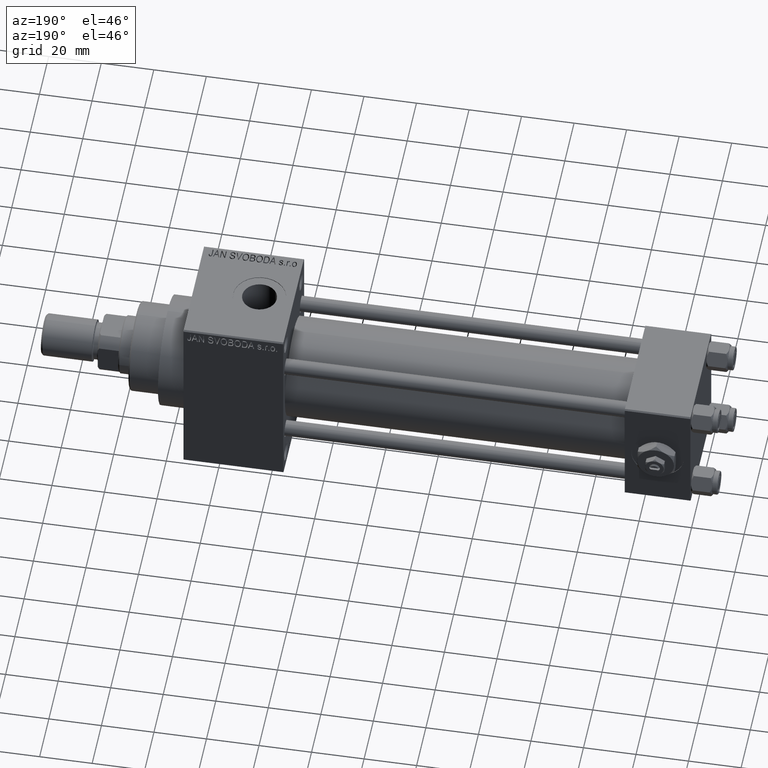
[diagram: clean part render]
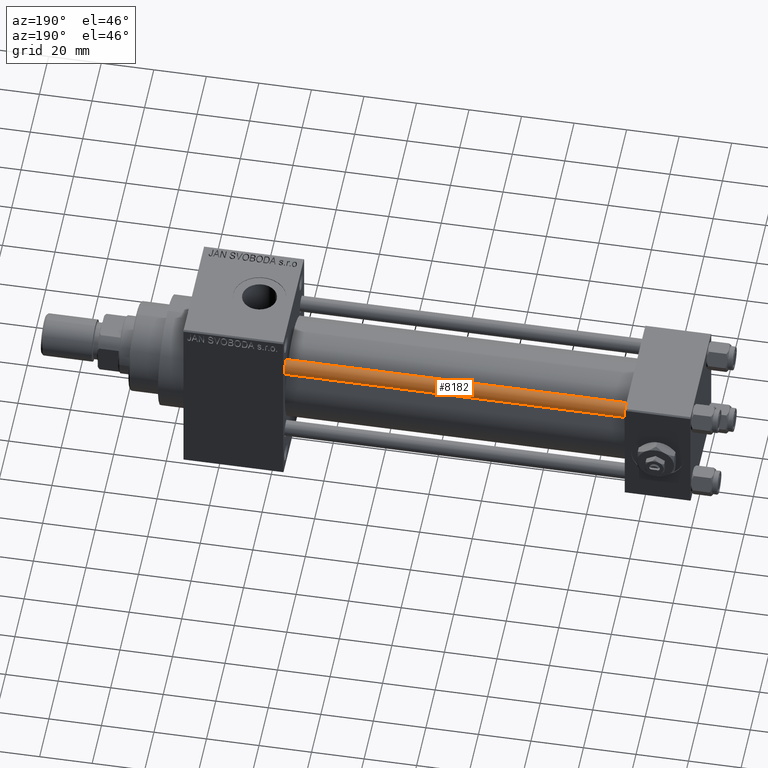
[diagram: same view with one face highlighted and labeled with its STEP entity id]
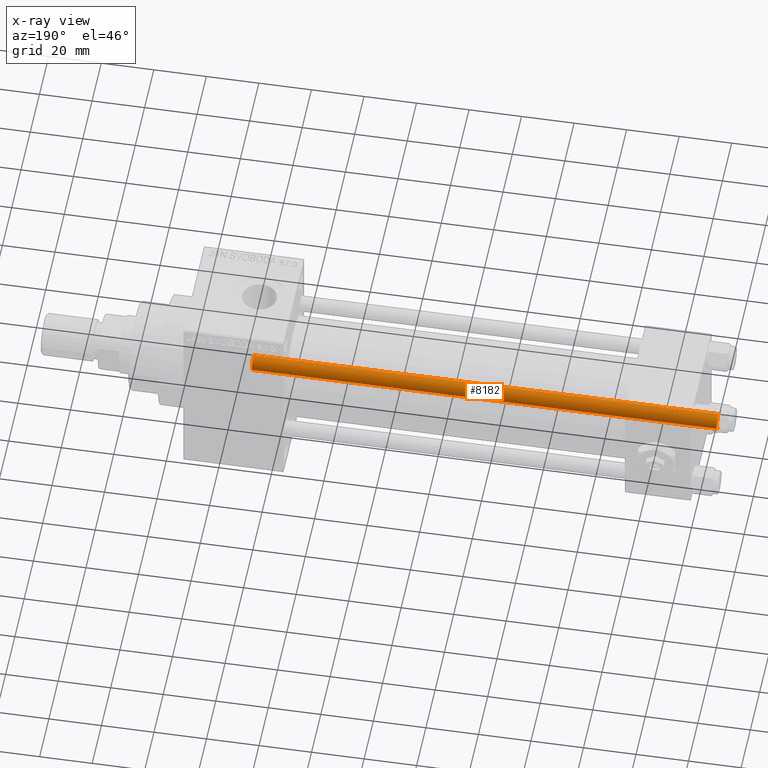
[diagram: x-ray of the same camera — body ghosted, the highlighted face saturated]
A machine part, auxiliary view. The second image highlights one B-rep face of the part: STEP entity #8182.
The next image is the same camera in x-ray: the body ghosted, the highlighted face saturated — about 0% of this face is hidden behind the body in this view.
In plain terms, the highlighted cylindrical surface (edge-blend (fillet) strip) has radius 3 mm, axis along (-1, -0, 0).
Its self-contained STEP definition (entity closure, byte-faithful):
#420 = FACE_OUTER_BOUND ( 'NONE', #7647, .T. ) ;
#665 = VECTOR ( 'NONE', #10655, 1000.000000000000000 ) ;
#1017 = ORIENTED_EDGE ( 'NONE', *, *, #37607, .T. ) ;
#1152 = CARTESIAN_POINT ( 'NONE',  ( 0.000000000000000000, 0.000000000000000000, 178.0000000000000000 ) ) ;
#1277 = DIRECTION ( 'NONE',  ( -0.000000000000000000, -0.000000000000000000, -1.000000000000000000 ) ) ;
#1287 = CARTESIAN_POINT ( 'NONE',  ( 3.000000000000000444, 3.673940397442060361E-16, 177.5000000000000000 ) ) ;
#1899 = DIRECTION ( 'NONE',  ( 1.000000000000000000, 0.000000000000000000, 0.000000000000000000 ) ) ;
#2635 = CARTESIAN_POINT ( 'NONE',  ( 0.000000000000000000, 0.000000000000000000, 177.5000000000000000 ) ) ;
#6179 = CIRCLE ( 'NONE', #10896, 3.000000000000000444 ) ;
#6593 = DIRECTION ( 'NONE',  ( -0.000000000000000000, -0.000000000000000000, 1.000000000000000000 ) ) ;
#7647 = EDGE_LOOP ( 'NONE', ( #24370, #1017, #21243, #27458 ) ) ;
#8182 = ADVANCED_FACE ( 'NONE', ( #420 ), #16008, .T. ) ;
#8998 = EDGE_CURVE ( 'NONE', #11545, #31874, #35223, .T. ) ;
#10307 = CARTESIAN_POINT ( 'NONE',  ( 0.000000000000000000, 0.000000000000000000, 0.5000000000000281997 ) ) ;
#10655 = DIRECTION ( 'NONE',  ( -0.000000000000000000, -0.000000000000000000, -1.000000000000000000 ) ) ;
#10896 = AXIS2_PLACEMENT_3D ( 'NONE', #10307, #6593, #21710 ) ;
#11098 = CIRCLE ( 'NONE', #13485, 3.000000000000000444 ) ;
#11545 = VERTEX_POINT ( 'NONE', #33688 ) ;
#12525 = DIRECTION ( 'NONE',  ( -0.000000000000000000, -0.000000000000000000, -1.000000000000000000 ) ) ;
#13485 = AXIS2_PLACEMENT_3D ( 'NONE', #2635, #35851, #1899 ) ;
#15764 = DIRECTION ( 'NONE',  ( -1.000000000000000000, 0.000000000000000000, 0.000000000000000000 ) ) ;
#16008 = CYLINDRICAL_SURFACE ( 'NONE', #48997, 3.000000000000000444 ) ;
#17153 = VERTEX_POINT ( 'NONE', #1287 ) ;
#21243 = ORIENTED_EDGE ( 'NONE', *, *, #38205, .T. ) ;
#21710 = DIRECTION ( 'NONE',  ( 1.000000000000000000, 0.000000000000000000, 0.000000000000000000 ) ) ;
#22060 = CARTESIAN_POINT ( 'NONE',  ( 3.000000000000000444, 3.673940397442060361E-16, 178.0000000000000000 ) ) ;
#24370 = ORIENTED_EDGE ( 'NONE', *, *, #47334, .T. ) ;
#27458 = ORIENTED_EDGE ( 'NONE', *, *, #8998, .F. ) ;
#27780 = CARTESIAN_POINT ( 'NONE',  ( -3.000000000000000444, 0.000000000000000000, 178.0000000000000000 ) ) ;
#31874 = VERTEX_POINT ( 'NONE', #44043 ) ;
#31880 = VERTEX_POINT ( 'NONE', #36831 ) ;
#33688 = CARTESIAN_POINT ( 'NONE',  ( -3.000000000000000444, 0.000000000000000000, 177.5000000000000000 ) ) ;
#35223 = LINE ( 'NONE', #27780, #44282 ) ;
#35851 = DIRECTION ( 'NONE',  ( 0.000000000000000000, 0.000000000000000000, -1.000000000000000000 ) ) ;
#36831 = CARTESIAN_POINT ( 'NONE',  ( 3.000000000000000444, 3.673940397442060361E-16, 0.5000000000000281997 ) ) ;
#37607 = EDGE_CURVE ( 'NONE', #17153, #31880, #40189, .T. ) ;
#38205 = EDGE_CURVE ( 'NONE', #31880, #31874, #6179, .T. ) ;
#40189 = LINE ( 'NONE', #22060, #665 ) ;
#44043 = CARTESIAN_POINT ( 'NONE',  ( -3.000000000000000444, 0.000000000000000000, 0.5000000000000281997 ) ) ;
#44282 = VECTOR ( 'NONE', #1277, 1000.000000000000000 ) ;
#47334 = EDGE_CURVE ( 'NONE', #11545, #17153, #11098, .T. ) ;
#48997 = AXIS2_PLACEMENT_3D ( 'NONE', #1152, #12525, #15764 ) ;